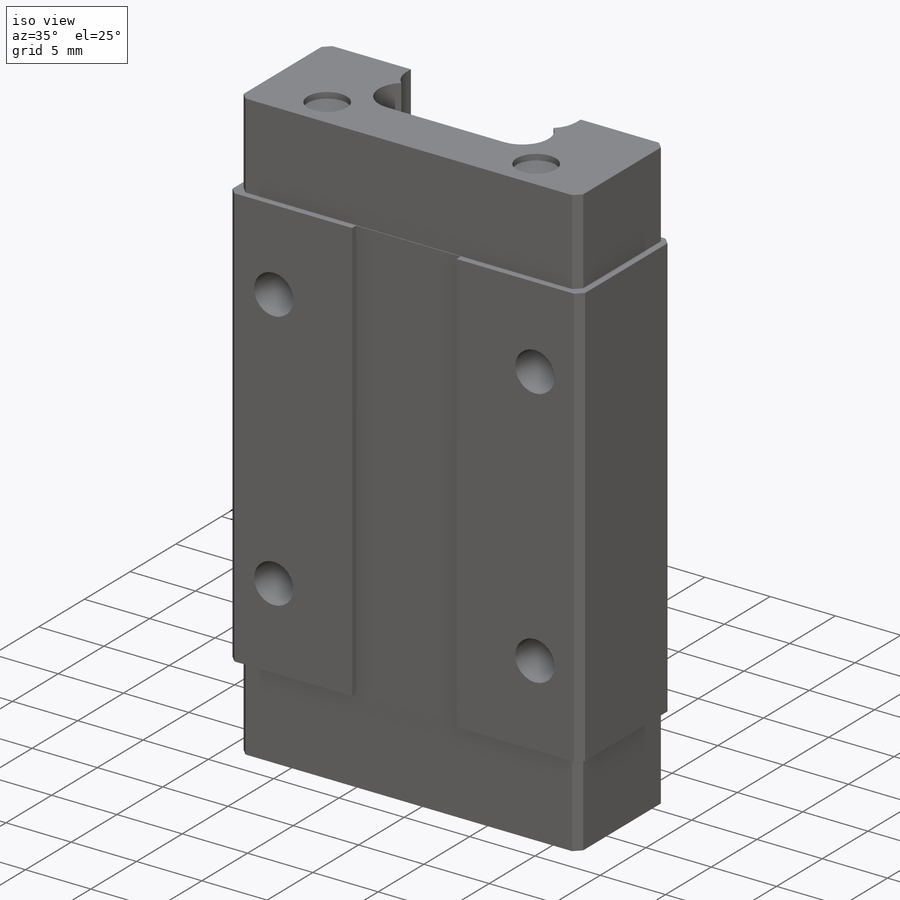
[diagram: iso view]
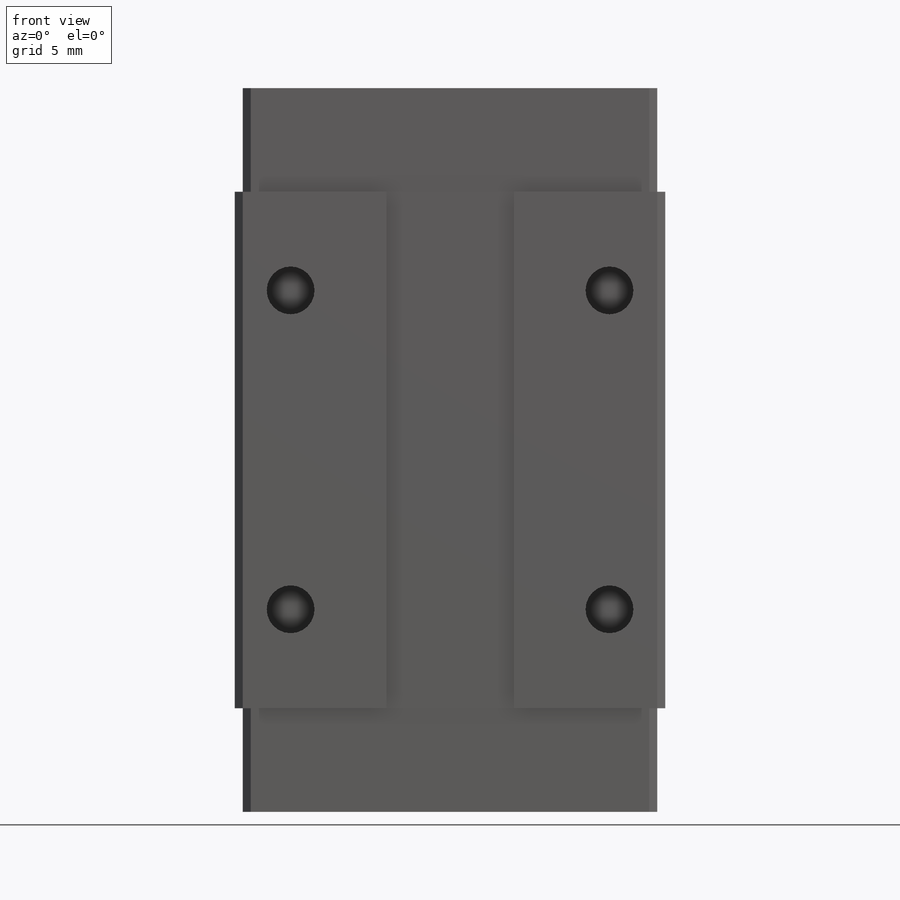
[diagram: front view]
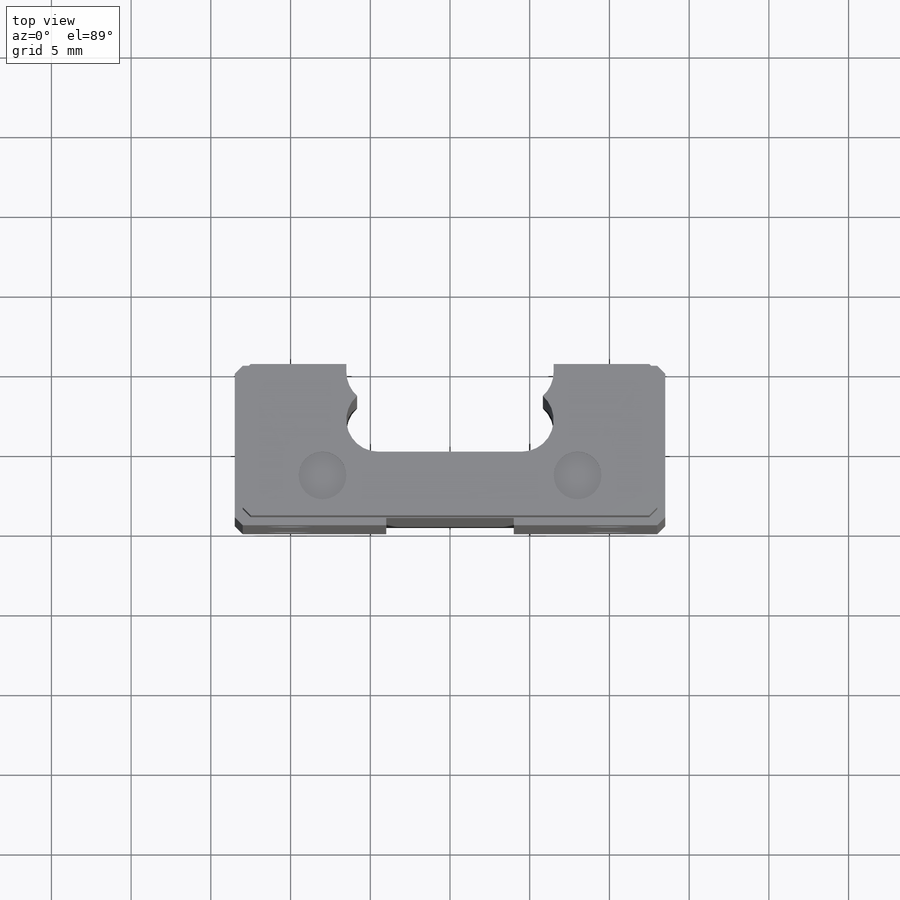
[diagram: top view]
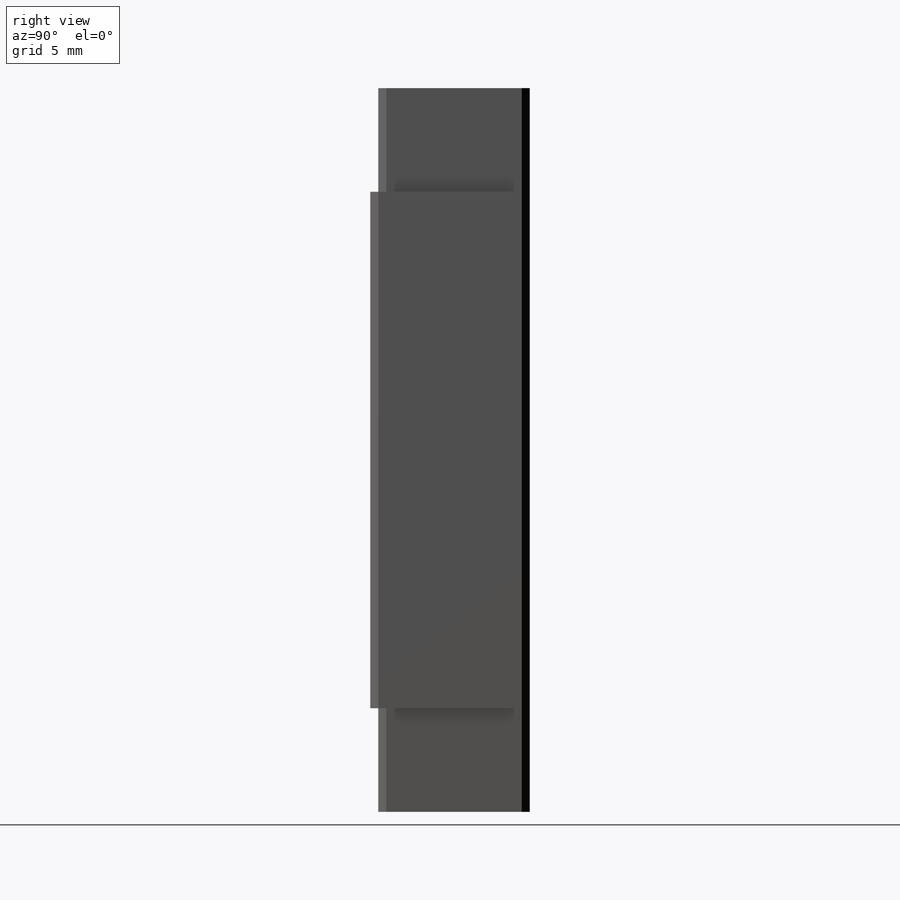
[diagram: right view]
SOLIDWORKS PART (.sldprt)
format: sldprt  version: not decoded by parser v0  size: 463,872 bytes
history: native  units: mm
features: sketch x10, cut_extrude x7, material x1, extrude x1, mirror x1, chamfer x1 (+12 scaffold rows collapsed)
feature tree (33):
  scaffold x12  (default folders/planes/origin — collapsed)
  material  "Material <not specified>"
  sketch  "Sketch1"  dims[c1.D1=~62.761436mm c1.D2=~41.387151mm c2.D1=45.4mm c2.D2=27.0mm c2.D3=13.5mm]
  extrude  "Boss-Extrude1"  Depth=10mm
  sketch  "Sketch2"  dims[c1.D1=~6.699976mm c1.D2=27.0mm c2.D1=~6.381884mm c2.D2=27.0mm c3.D1=32.4mm c3.D2=6.5mm]
  cut_extrude  "Cut-Extrude1"  Depth=0.5mm
  sketch  "Sketch3"  dims[c1.D1=6.5mm c1.D2=9.5mm c2.D1=6.5mm c2.D2=9.5mm]
  cut_extrude  "Cut-Extrude2"  Depth=0.5mm
  mirror  "Mirror1"
  sketch  "Sketch4"  dims[c1.D1=~3.308156mm c1.D3=~3.435393mm c1.D5=3.0mm c1.D6=3.0mm c2.D1=10.0mm c2.D2=3.5mm c2.D3=3.5mm c2.D4=10.0mm]
  cut_extrude  "Cut-Extrude3"  Depth=3.5mm
  chamfer  "Chamfer1"  Distance=0.5mm Angle=45deg
  sketch  "Sketch5"  dims[D1=1.0mm D2=1.0mm]
  sketch  "Sketch6"  dims[c1.D5=3.0mm c1.D6=3.0mm c1.D7=0.5mm c1.D1=~7.572104mm c1.D2=~9.969449mm c2.D1=8.0mm c2.D2=12.0mm c2.D3=6.0mm c2.D4=3.0mm c2.D5=~5.266851mm c2.D8=4.5mm c3.D2=4.5mm c3.D8=4.5mm c3.D9=~0.844524mm c3.D1=13.0mm c3.D3=0.5mm]
  cut_extrude  "Cut-Extrude4"  [1 undecoded]
  sketch  "Sketch7"  dims[c1.D1=32.4mm c1.D2=~7.316114mm c2.D1=8.0mm c2.D2=4.0mm]
  cut_extrude  "Cut-Extrude5"  Depth=0.45mm
  sketch  "Sketch8"  dims[D1=3.0mm D2=3.0mm D3=8.0mm D4=8.0mm D5=7.0mm D6=7.0mm]
  cut_extrude  "Cut-Extrude6"  Depth=0.45mm
  sketch  "Sketch9"
  cut_extrude  "Cut-Extrude7"  Depth=0.45mm
  sketch  "Sketch10"  dims[D1=~14.088934mm Split Line2=0.0deg]
decode coverage: 17 of 20 modeling features carry decoded parameters
note: ~ marks probable driven/reference dimensions
note: 1 parameter value undecoded
note: suppression state not decoded; provenance and decode notes live in map.json
